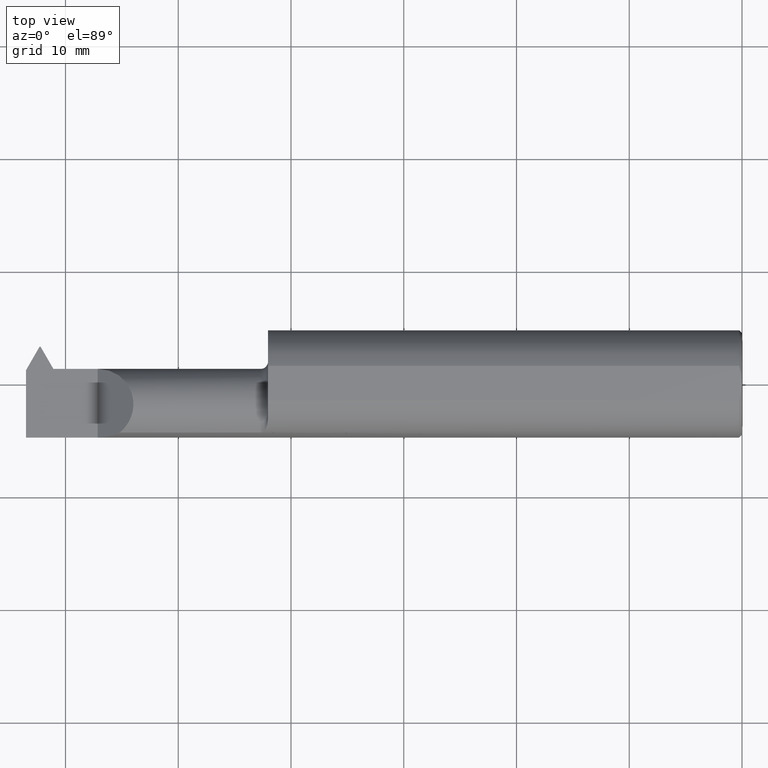
[diagram: clean part render]
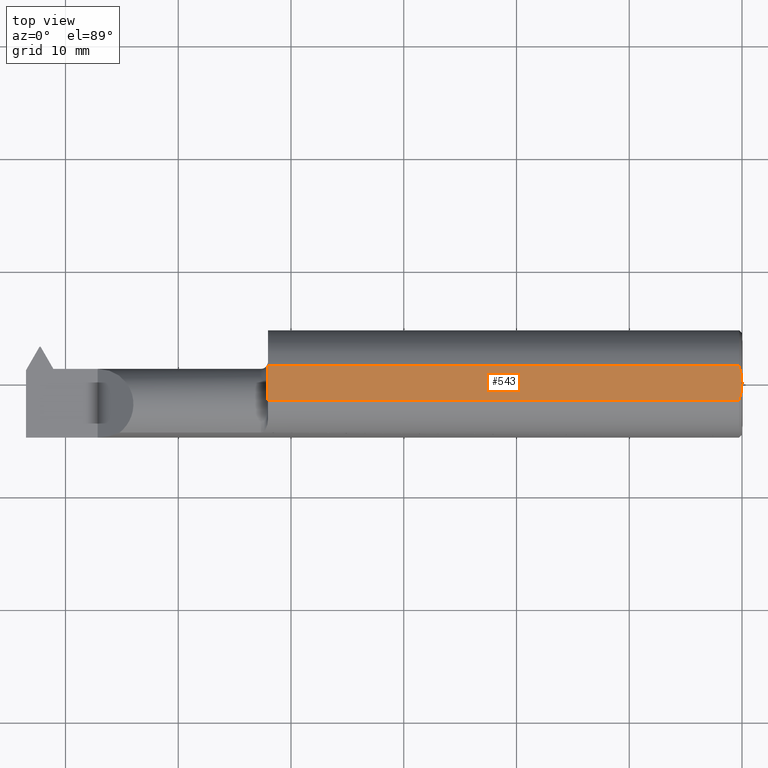
[diagram: same view with one face highlighted and labeled with its STEP entity id]
A machine part, top view. The second image highlights one B-rep face of the part: STEP entity #543.
In plain terms, the highlighted planar face has unit normal (-0, 0, -1).
Its self-contained STEP definition (entity closure, byte-faithful):
#10 = ORIENTED_EDGE ( 'NONE', *, *, #730, .T. ) ;
#32 = CARTESIAN_POINT ( 'NONE',  ( -2.500000000000000000, 0.2123500000000002053, 0.1773500000000001187 ) ) ;
#57 = VERTEX_POINT ( 'NONE', #772 ) ;
#84 = CARTESIAN_POINT ( 'NONE',  ( 5.167234455789520332E-16, -0.01026980879711896812, 0.1773500000000000909 ) ) ;
#132 = VERTEX_POINT ( 'NONE', #765 ) ;
#143 = CARTESIAN_POINT ( 'NONE',  ( -0.0008974174807281316358, -0.02044204845470683207, 0.1773500000000000631 ) ) ;
#161 = CARTESIAN_POINT ( 'NONE',  ( -2.500000000000000000, -0.06039039658753654616, 0.1773500000000000909 ) ) ;
#181 = EDGE_CURVE ( 'NONE', #57, #414, #462, .T. ) ;
#201 = AXIS2_PLACEMENT_3D ( 'NONE', #32, #252, #640 ) ;
#212 = CARTESIAN_POINT ( 'NONE',  ( -0.006852151730285416242, 0.05062478141268297177, 0.1773500000000000909 ) ) ;
#213 = CARTESIAN_POINT ( 'NONE',  ( -0.009999999999999073866, -0.06039039658753624085, 0.1773500000000000909 ) ) ;
#230 = CARTESIAN_POINT ( 'NONE',  ( -0.0009167640511158797918, 0.02059964124962108956, 0.1773500000000000909 ) ) ;
#249 = CARTESIAN_POINT ( 'NONE',  ( -0.009999999999999073866, 0.06039039658753692086, 0.1773500000000000909 ) ) ;
#251 = VERTEX_POINT ( 'NONE', #690 ) ;
#252 = DIRECTION ( 'NONE',  ( -2.498191301712524670E-33, 1.608104540654733016E-16, -1.000000000000000000 ) ) ;
#305 = LINE ( 'NONE', #313, #382 ) ;
#313 = CARTESIAN_POINT ( 'NONE',  ( -1.655000000000000249, 0.2123500000000001220, 0.1773500000000001187 ) ) ;
#324 = CARTESIAN_POINT ( 'NONE',  ( -1.655000000000000249, -0.06039039658753644207, 0.1773500000000000909 ) ) ;
#332 = EDGE_LOOP ( 'NONE', ( #827, #816, #524, #491, #10 ) ) ;
#382 = VECTOR ( 'NONE', #385, 39.37007874015748143 ) ;
#383 = EDGE_CURVE ( 'NONE', #132, #57, #652, .T. ) ;
#385 = DIRECTION ( 'NONE',  ( 7.807390513315893590E-17, 1.000000000000000000, 1.608104540654733016E-16 ) ) ;
#414 = VERTEX_POINT ( 'NONE', #249 ) ;
#424 = CARTESIAN_POINT ( 'NONE',  ( -0.004345633232307596558, 0.04072602595449471841, 0.1773500000000000909 ) ) ;
#462 = B_SPLINE_CURVE_WITH_KNOTS ( 'NONE', 3,
 ( #695, #830, #230, #424, #212, #619 ),
 .UNSPECIFIED., .F., .F.,
 ( 4, 2, 4 ),
 ( 0.003500626357656857861, 0.004276870921898040870, 0.005053115486139223012 ),
 .UNSPECIFIED. ) ;
#489 = EDGE_CURVE ( 'NONE', #651, #132, #516, .T. ) ;
#491 = ORIENTED_EDGE ( 'NONE', *, *, #181, .T. ) ;
#516 = LINE ( 'NONE', #161, #579 ) ;
#522 = FACE_OUTER_BOUND ( 'NONE', #332, .T. ) ;
#524 = ORIENTED_EDGE ( 'NONE', *, *, #383, .T. ) ;
#530 = LINE ( 'NONE', #715, #803 ) ;
#543 = ADVANCED_FACE ( 'NONE', ( #522 ), #774, .F. ) ;
#575 = DIRECTION ( 'NONE',  ( -1.000000000000000000, -1.224646799147352961E-16, 0.000000000000000000 ) ) ;
#579 = VECTOR ( 'NONE', #771, 39.37007874015748143 ) ;
#619 = CARTESIAN_POINT ( 'NONE',  ( -0.009999999999999073866, 0.06039039658753692086, 0.1773500000000000909 ) ) ;
#620 = CARTESIAN_POINT ( 'NONE',  ( -4.969808731120574713E-33, 3.199103279729614038E-16, 0.1773500000000000909 ) ) ;
#640 = DIRECTION ( 'NONE',  ( 0.000000000000000000, 1.000000000000000000, 1.608104540654733016E-16 ) ) ;
#651 = VERTEX_POINT ( 'NONE', #324 ) ;
#652 = B_SPLINE_CURVE_WITH_KNOTS ( 'NONE', 3,
 ( #213, #751, #755, #143, #84, #620 ),
 .UNSPECIFIED., .F., .F.,
 ( 4, 2, 4 ),
 ( 0.001950265285394878808, 0.002725445821525868118, 0.003500626357656857861 ),
 .UNSPECIFIED. ) ;
#690 = CARTESIAN_POINT ( 'NONE',  ( -1.655000000000000249, 0.06039039658753692086, 0.1773500000000000909 ) ) ;
#695 = CARTESIAN_POINT ( 'NONE',  ( -4.969808731120574713E-33, 3.199103279729614038E-16, 0.1773500000000000909 ) ) ;
#715 = CARTESIAN_POINT ( 'NONE',  ( -2.500000000000000000, 0.06039039658753661555, 0.1773500000000000909 ) ) ;
#730 = EDGE_CURVE ( 'NONE', #414, #251, #530, .T. ) ;
#751 = CARTESIAN_POINT ( 'NONE',  ( -0.006863038267947818571, -0.05065855487579187105, 0.1773500000000001187 ) ) ;
#755 = CARTESIAN_POINT ( 'NONE',  ( -0.004318418993202934042, -0.04060972747957779933, 0.1773500000000001187 ) ) ;
#765 = CARTESIAN_POINT ( 'NONE',  ( -0.009999999999999073866, -0.06039039658753624085, 0.1773500000000000909 ) ) ;
#771 = DIRECTION ( 'NONE',  ( 1.000000000000000000, 1.224646799147352961E-16, -0.000000000000000000 ) ) ;
#772 = CARTESIAN_POINT ( 'NONE',  ( -4.969808731120574713E-33, 3.199103279729614038E-16, 0.1773500000000000909 ) ) ;
#774 = PLANE ( 'NONE',  #201 ) ;
#795 = EDGE_CURVE ( 'NONE', #651, #251, #305, .T. ) ;
#803 = VECTOR ( 'NONE', #575, 39.37007874015748143 ) ;
#816 = ORIENTED_EDGE ( 'NONE', *, *, #489, .T. ) ;
#827 = ORIENTED_EDGE ( 'NONE', *, *, #795, .F. ) ;
#830 = CARTESIAN_POINT ( 'NONE',  ( 5.248519605747486541E-16, 0.01028390533945653350, 0.1773500000000001187 ) ) ;